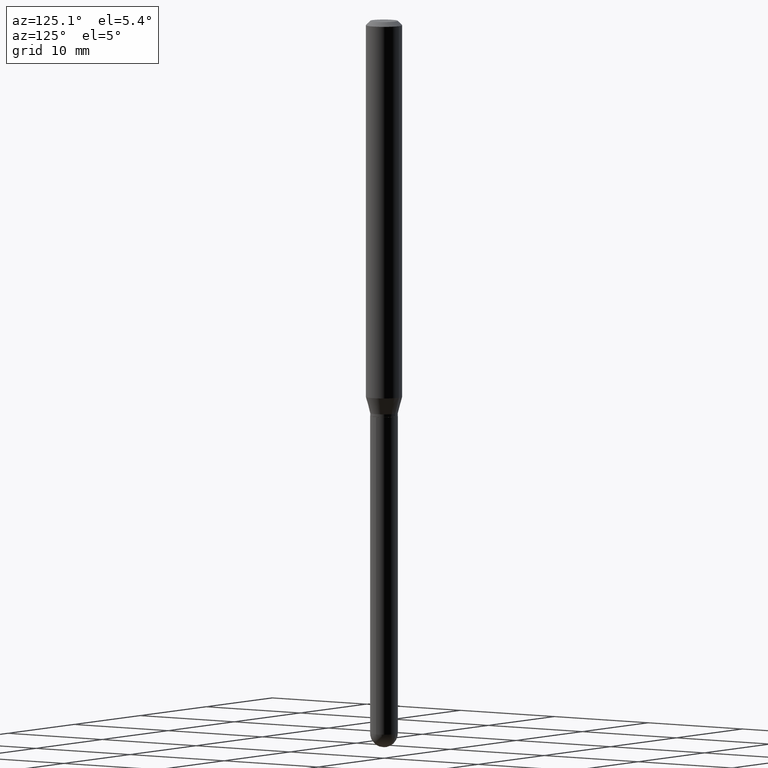
[diagram: clean part render]
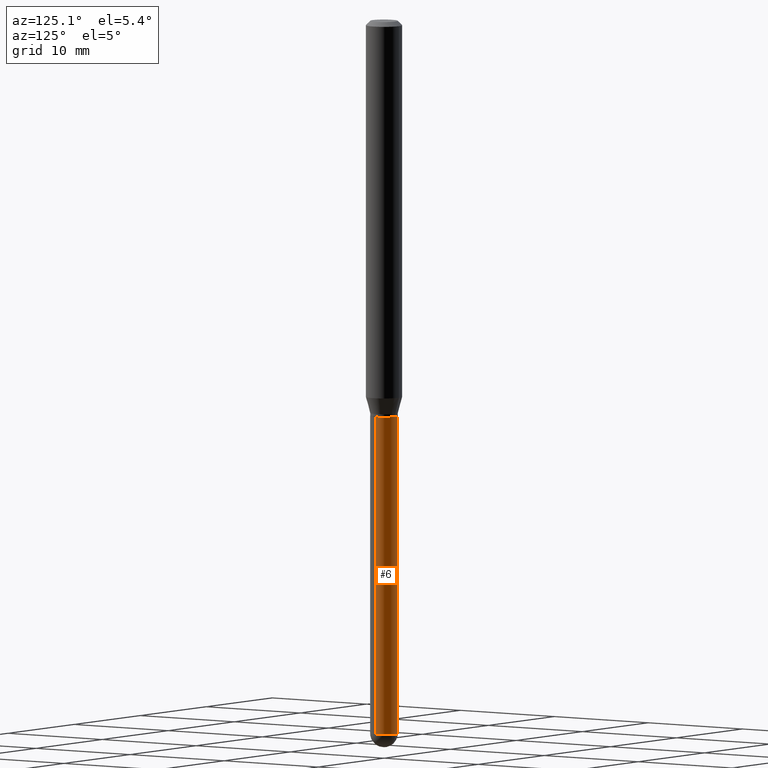
[diagram: same view with one face highlighted and labeled with its STEP entity id]
A machine part, auxiliary view. The second image highlights one B-rep face of the part: STEP entity #6.
In plain terms, the highlighted cylindrical surface (edge-blend (fillet) strip) has radius 1.2065 mm, axis along (-0, 0, 1).
Its self-contained STEP definition (entity closure, byte-faithful):
#6 = ADVANCED_FACE ( 'NONE', ( #102 ), #350, .T. ) ;
#34 = LINE ( 'NONE', #196, #469 ) ;
#41 = DIRECTION ( 'NONE',  ( -2.445468806185136877E-29, 3.491481338843145188E-15, 1.000000000000000000 ) ) ;
#43 = DIRECTION ( 'NONE',  ( -2.445468806185136597E-29, 3.491481338843145583E-15, 1.000000000000000000 ) ) ;
#65 = CARTESIAN_POINT ( 'NONE',  ( -0.04749999999999999362, -6.318128502683699525E-15, -1.360000000000000320 ) ) ;
#66 = VECTOR ( 'NONE', #41, 39.37007874015748143 ) ;
#79 = EDGE_CURVE ( 'NONE', #370, #292, #439, .T. ) ;
#86 = EDGE_CURVE ( 'NONE', #370, #220, #413, .T. ) ;
#102 = FACE_OUTER_BOUND ( 'NONE', #463, .T. ) ;
#112 = CARTESIAN_POINT ( 'NONE',  ( -0.04750000000000000749, -6.318128502683699525E-15, -2.452500000000000124 ) ) ;
#125 = AXIS2_PLACEMENT_3D ( 'NONE', #259, #148, #491 ) ;
#148 = DIRECTION ( 'NONE',  ( -2.445468806185136597E-29, 3.491481338843145583E-15, 1.000000000000000000 ) ) ;
#152 = AXIS2_PLACEMENT_3D ( 'NONE', #267, #423, #509 ) ;
#154 = CIRCLE ( 'NONE', #125, 0.04750000000000000749 ) ;
#162 = AXIS2_PLACEMENT_3D ( 'NONE', #235, #43, #197 ) ;
#170 = DIRECTION ( 'NONE',  ( 1.000000000000000000, -6.982962677686280910E-15, 0.000000000000000000 ) ) ;
#183 = CARTESIAN_POINT ( 'NONE',  ( 3.316907271901575630E-16, 0.04749999999999143102, -2.452500000000000568 ) ) ;
#189 = DIRECTION ( 'NONE',  ( -2.445468806185136877E-29, 3.491481338843145188E-15, 1.000000000000000000 ) ) ;
#196 = CARTESIAN_POINT ( 'NONE',  ( -0.04750000000000000749, 3.375077994860476415E-16, -2.336494167871080260E-30 ) ) ;
#197 = DIRECTION ( 'NONE',  ( 1.000000000000000000, -6.982962677686261977E-15, 0.000000000000000000 ) ) ;
#200 = CARTESIAN_POINT ( 'NONE',  ( 5.997512247169047773E-29, -8.562857983512815004E-15, -2.452500000000000124 ) ) ;
#211 = VERTEX_POINT ( 'NONE', #65 ) ;
#214 = ORIENTED_EDGE ( 'NONE', *, *, #86, .T. ) ;
#220 = VERTEX_POINT ( 'NONE', #183 ) ;
#235 = CARTESIAN_POINT ( 'NONE',  ( 3.325837576411786624E-29, -4.748414620826679034E-15, -1.360000000000000320 ) ) ;
#259 = CARTESIAN_POINT ( 'NONE',  ( 5.997512247169047773E-29, -8.562857983512815004E-15, -2.452500000000000124 ) ) ;
#265 = CIRCLE ( 'NONE', #162, 0.04749999999999999362 ) ;
#267 = CARTESIAN_POINT ( 'NONE',  ( 0.000000000000000000, 0.000000000000000000, 0.000000000000000000 ) ) ;
#292 = VERTEX_POINT ( 'NONE', #481 ) ;
#321 = CARTESIAN_POINT ( 'NONE',  ( 0.04750000000000000749, -3.316907271900977082E-16, 2.316183968503069432E-30 ) ) ;
#328 = ORIENTED_EDGE ( 'NONE', *, *, #79, .F. ) ;
#350 = CYLINDRICAL_SURFACE ( 'NONE', #152, 0.04750000000000000749 ) ;
#361 = ORIENTED_EDGE ( 'NONE', *, *, #393, .T. ) ;
#370 = VERTEX_POINT ( 'NONE', #377 ) ;
#377 = CARTESIAN_POINT ( 'NONE',  ( 0.04750000000000000749, -6.987327029359844530E-15, -2.452500000000000124 ) ) ;
#384 = AXIS2_PLACEMENT_3D ( 'NONE', #200, #468, #170 ) ;
#393 = EDGE_CURVE ( 'NONE', #220, #409, #154, .T. ) ;
#409 = VERTEX_POINT ( 'NONE', #112 ) ;
#412 = EDGE_CURVE ( 'NONE', #292, #211, #265, .T. ) ;
#413 = CIRCLE ( 'NONE', #384, 0.04750000000000000749 ) ;
#423 = DIRECTION ( 'NONE',  ( -2.445468806185136597E-29, 3.491481338843145583E-15, 1.000000000000000000 ) ) ;
#439 = LINE ( 'NONE', #321, #66 ) ;
#449 = ORIENTED_EDGE ( 'NONE', *, *, #499, .T. ) ;
#458 = ORIENTED_EDGE ( 'NONE', *, *, #412, .F. ) ;
#463 = EDGE_LOOP ( 'NONE', ( #361, #449, #458, #328, #214 ) ) ;
#468 = DIRECTION ( 'NONE',  ( -2.445468806185136597E-29, 3.491481338843145583E-15, 1.000000000000000000 ) ) ;
#469 = VECTOR ( 'NONE', #189, 39.37007874015748143 ) ;
#481 = CARTESIAN_POINT ( 'NONE',  ( 0.04749999999999999362, -5.080105348016776545E-15, -1.360000000000000320 ) ) ;
#491 = DIRECTION ( 'NONE',  ( 1.000000000000000000, -6.982962677686280910E-15, 0.000000000000000000 ) ) ;
#499 = EDGE_CURVE ( 'NONE', #409, #211, #34, .T. ) ;
#509 = DIRECTION ( 'NONE',  ( 1.000000000000000000, -6.982962677686266711E-15, 4.876176775795934672E-29 ) ) ;